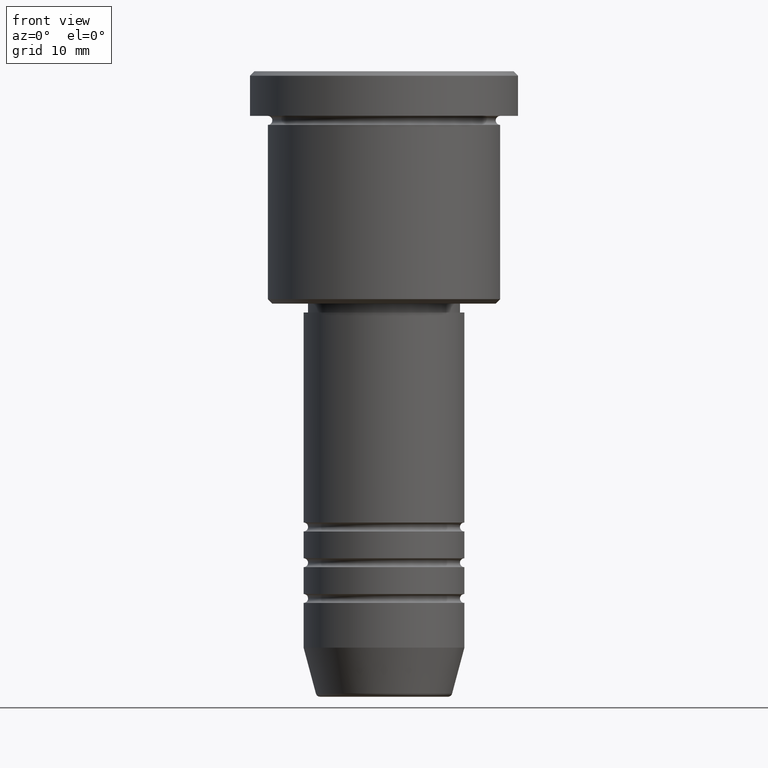
[diagram: clean part render]
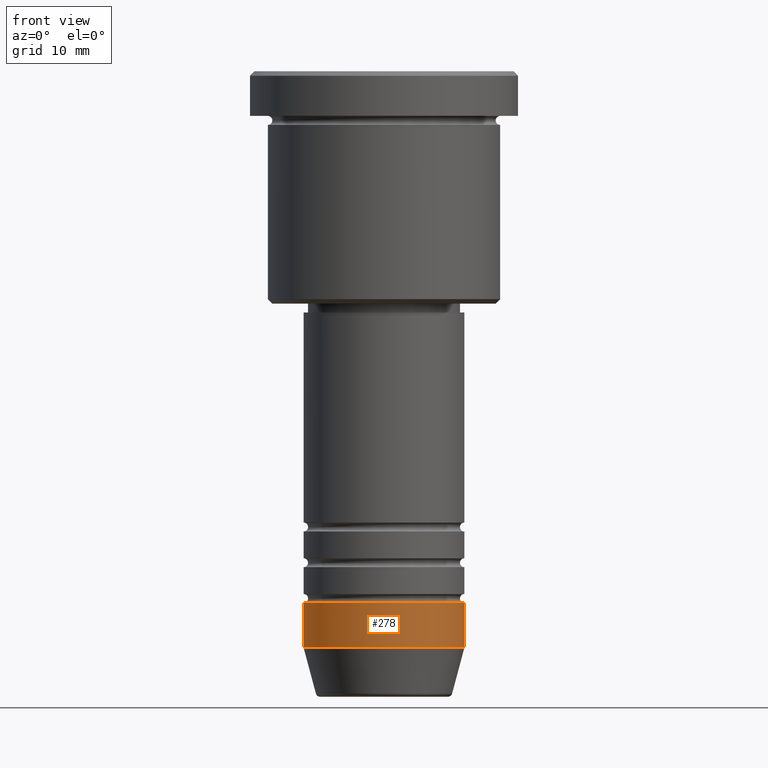
[diagram: same view with one face highlighted and labeled with its STEP entity id]
A machine part, front view. The second image highlights one B-rep face of the part: STEP entity #278.
In plain terms, the highlighted cylindrical surface (partial cylindrical patch) has radius 9 mm, axis along (-0, -0, 1).
Its self-contained STEP definition (entity closure, byte-faithful):
#5 = EDGE_CURVE ( 'NONE', #995, #25, #914, .T. ) ;
#25 = VERTEX_POINT ( 'NONE', #817 ) ;
#51 = CYLINDRICAL_SURFACE ( 'NONE', #704, 9.000000000000001776 ) ;
#74 = DIRECTION ( 'NONE',  ( -0.000000000000000000, -0.000000000000000000, 1.000000000000000000 ) ) ;
#91 = ORIENTED_EDGE ( 'NONE', *, *, #5, .F. ) ;
#128 = CARTESIAN_POINT ( 'NONE',  ( 0.000000000000000000, 0.000000000000000000, 0.000000000000000000 ) ) ;
#135 = FACE_OUTER_BOUND ( 'NONE', #945, .T. ) ;
#148 = CARTESIAN_POINT ( 'NONE',  ( 9.000000000000001776, 0.000000000000000000, 0.000000000000000000 ) ) ;
#165 = DIRECTION ( 'NONE',  ( 1.000000000000000000, 0.000000000000000000, 0.000000000000000000 ) ) ;
#197 = CARTESIAN_POINT ( 'NONE',  ( 9.000000000000000000, 0.000000000000000000, -59.50000000000000711 ) ) ;
#268 = CARTESIAN_POINT ( 'NONE',  ( -9.000000000000001776, 1.102182119232617911E-15, 0.000000000000000000 ) ) ;
#278 = ADVANCED_FACE ( 'NONE', ( #135 ), #51, .T. ) ;
#339 = DIRECTION ( 'NONE',  ( -0.000000000000000000, -0.000000000000000000, 1.000000000000000000 ) ) ;
#363 = AXIS2_PLACEMENT_3D ( 'NONE', #528, #74, #165 ) ;
#365 = VECTOR ( 'NONE', #339, 1000.000000000000000 ) ;
#368 = CARTESIAN_POINT ( 'NONE',  ( 9.000000000000001776, 0.000000000000000000, -64.50000000000000000 ) ) ;
#402 = DIRECTION ( 'NONE',  ( -0.000000000000000000, -0.000000000000000000, 1.000000000000000000 ) ) ;
#455 = CIRCLE ( 'NONE', #363, 9.000000000000000000 ) ;
#528 = CARTESIAN_POINT ( 'NONE',  ( 0.000000000000000000, 0.000000000000000000, -59.50000000000000711 ) ) ;
#541 = DIRECTION ( 'NONE',  ( 1.000000000000000000, 0.000000000000000000, 0.000000000000000000 ) ) ;
#573 = EDGE_CURVE ( 'NONE', #25, #784, #455, .T. ) ;
#596 = VERTEX_POINT ( 'NONE', #368 ) ;
#623 = DIRECTION ( 'NONE',  ( -0.000000000000000000, -0.000000000000000000, 1.000000000000000000 ) ) ;
#682 = EDGE_CURVE ( 'NONE', #995, #596, #1040, .T. ) ;
#704 = AXIS2_PLACEMENT_3D ( 'NONE', #128, #402, #770 ) ;
#731 = DIRECTION ( 'NONE',  ( -0.000000000000000000, -0.000000000000000000, 1.000000000000000000 ) ) ;
#754 = CARTESIAN_POINT ( 'NONE',  ( -9.000000000000001776, 1.102182119232617911E-15, -64.50000000000000000 ) ) ;
#770 = DIRECTION ( 'NONE',  ( 1.000000000000000000, 0.000000000000000000, 0.000000000000000000 ) ) ;
#780 = AXIS2_PLACEMENT_3D ( 'NONE', #816, #731, #541 ) ;
#784 = VERTEX_POINT ( 'NONE', #197 ) ;
#816 = CARTESIAN_POINT ( 'NONE',  ( 0.000000000000000000, 0.000000000000000000, -64.50000000000000000 ) ) ;
#817 = CARTESIAN_POINT ( 'NONE',  ( -9.000000000000000000, 1.102182119232617714E-15, -59.50000000000000711 ) ) ;
#914 = LINE ( 'NONE', #268, #997 ) ;
#934 = EDGE_CURVE ( 'NONE', #596, #784, #967, .T. ) ;
#945 = EDGE_LOOP ( 'NONE', ( #91, #1113, #950, #1162 ) ) ;
#950 = ORIENTED_EDGE ( 'NONE', *, *, #934, .T. ) ;
#967 = LINE ( 'NONE', #148, #365 ) ;
#995 = VERTEX_POINT ( 'NONE', #754 ) ;
#997 = VECTOR ( 'NONE', #623, 1000.000000000000000 ) ;
#1040 = CIRCLE ( 'NONE', #780, 9.000000000000001776 ) ;
#1113 = ORIENTED_EDGE ( 'NONE', *, *, #682, .T. ) ;
#1162 = ORIENTED_EDGE ( 'NONE', *, *, #573, .F. ) ;